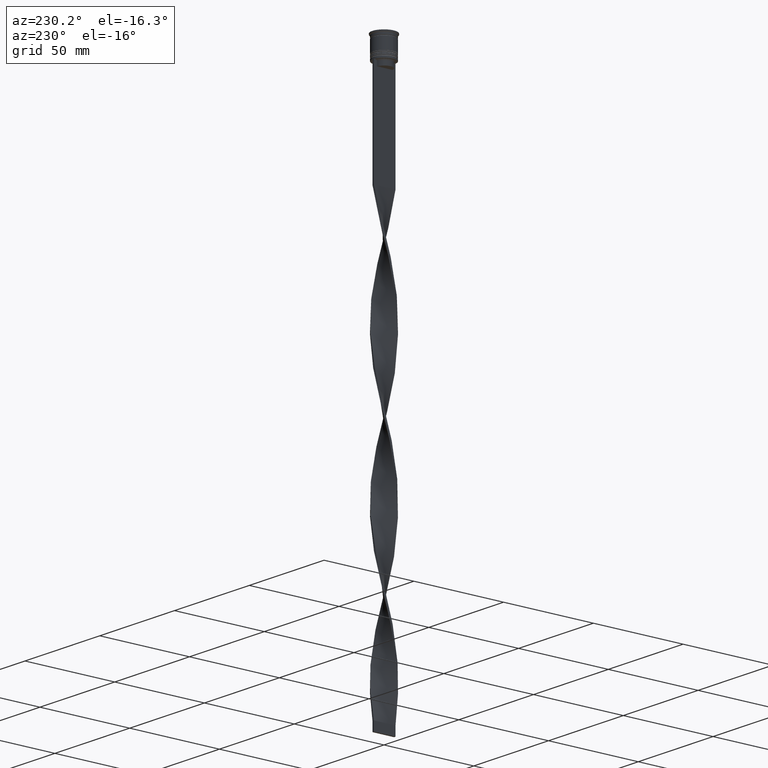
[diagram: clean part render]
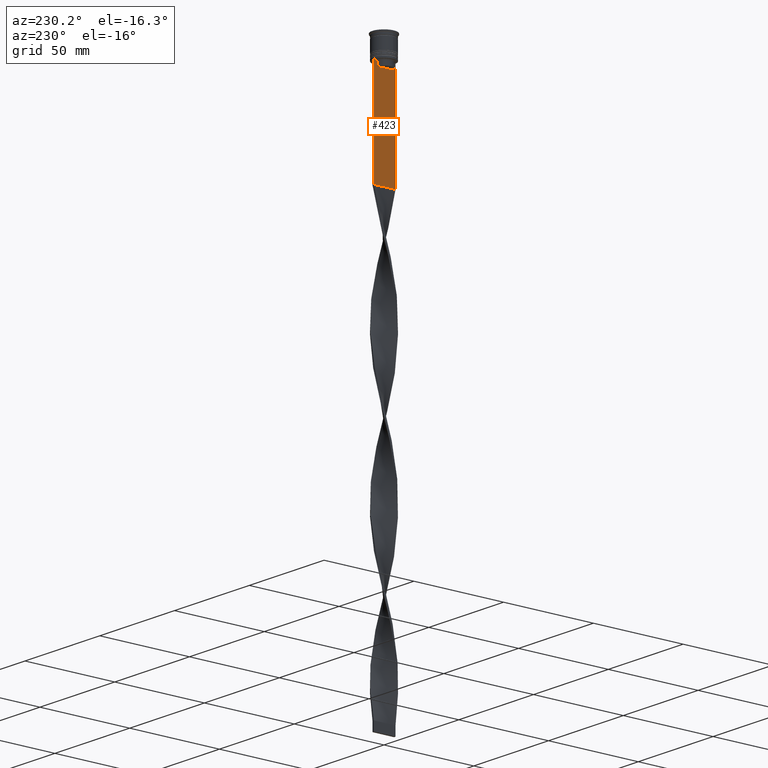
[diagram: same view with one face highlighted and labeled with its STEP entity id]
A machine part, auxiliary view. The second image highlights one B-rep face of the part: STEP entity #423.
In plain terms, the highlighted planar face has unit normal (-1, 0, 0).
Its self-contained STEP definition (entity closure, byte-faithful):
#38 = DIRECTION ( 'NONE',  ( 0.000000000000000000, -1.000000000000000000, 0.000000000000000000 ) ) ;
#66 = EDGE_CURVE ( 'NONE', #820, #506, #1969, .T. ) ;
#145 = CARTESIAN_POINT ( 'NONE',  ( -0.4999999999999997780, -4.874423042781576676, -12.50000000000000000 ) ) ;
#148 = ORIENTED_EDGE ( 'NONE', *, *, #3142, .F. ) ;
#160 = CARTESIAN_POINT ( 'NONE',  ( -0.4999999999999997780, 4.371498598878878816, -13.00000000000000178 ) ) ;
#176 = CARTESIAN_POINT ( 'NONE',  ( -0.4999999999999997780, 4.874423042781576676, -12.50000000000000000 ) ) ;
#205 = LINE ( 'NONE', #3421, #2182 ) ;
#251 = PLANE ( 'NONE',  #2102 ) ;
#280 = CARTESIAN_POINT ( 'NONE',  ( -0.4999999999999997780, 4.874423042781576676, -12.50000000000000000 ) ) ;
#306 = ORIENTED_EDGE ( 'NONE', *, *, #600, .F. ) ;
#339 = EDGE_CURVE ( 'NONE', #1458, #2911, #1206, .T. ) ;
#423 = ADVANCED_FACE ( 'NONE', ( #496 ), #251, .T. ) ;
#489 = DIRECTION ( 'NONE',  ( 0.000000000000000000, -1.000000000000000000, 0.000000000000000000 ) ) ;
#496 = FACE_OUTER_BOUND ( 'NONE', #3674, .T. ) ;
#506 = VERTEX_POINT ( 'NONE', #3381 ) ;
#549 = CARTESIAN_POINT ( 'NONE',  ( -0.4999999999999997780, 5.878775382679627626, -12.50000000000000000 ) ) ;
#556 = DIRECTION ( 'NONE',  ( 0.000000000000000000, 0.000000000000000000, -1.000000000000000000 ) ) ;
#574 = DIRECTION ( 'NONE',  ( 0.000000000000000000, 0.000000000000000000, -1.000000000000000000 ) ) ;
#600 = EDGE_CURVE ( 'NONE', #2527, #506, #2360, .T. ) ;
#603 = LINE ( 'NONE', #2752, #3300 ) ;
#646 = DIRECTION ( 'NONE',  ( 0.000000000000000000, 0.000000000000000000, -1.000000000000000000 ) ) ;
#652 = VERTEX_POINT ( 'NONE', #2976 ) ;
#656 = ORIENTED_EDGE ( 'NONE', *, *, #4055, .F. ) ;
#699 = VECTOR ( 'NONE', #3016, 1000.000000000000000 ) ;
#736 = CARTESIAN_POINT ( 'NONE',  ( -0.4999999999999997780, -4.371498598878878816, -13.00000000000000178 ) ) ;
#756 = DIRECTION ( 'NONE',  ( 0.000000000000000000, 1.000000000000000000, 0.000000000000000000 ) ) ;
#817 = CARTESIAN_POINT ( 'NONE',  ( -0.4999999999999997780, -4.539195586926424220, -12.83338928448044136 ) ) ;
#820 = VERTEX_POINT ( 'NONE', #1014 ) ;
#867 = VERTEX_POINT ( 'NONE', #3537 ) ;
#882 = CARTESIAN_POINT ( 'NONE',  ( -0.4999999999999997780, -6.000000000000000000, -12.50000000000000000 ) ) ;
#906 = ORIENTED_EDGE ( 'NONE', *, *, #917, .F. ) ;
#917 = EDGE_CURVE ( 'NONE', #2240, #652, #1123, .T. ) ;
#1014 = CARTESIAN_POINT ( 'NONE',  ( -0.4999999999999997780, 6.000000000000001776, -12.50000000000000000 ) ) ;
#1021 = CARTESIAN_POINT ( 'NONE',  ( -0.4999999999999997780, -4.874423042781576676, -12.50000000000000000 ) ) ;
#1115 = EDGE_CURVE ( 'NONE', #867, #2277, #3442, .T. ) ;
#1123 = LINE ( 'NONE', #2620, #3887 ) ;
#1126 = CARTESIAN_POINT ( 'NONE',  ( -0.4999999999999997780, -6.000000000000000000, -12.50000000000000000 ) ) ;
#1159 = VERTEX_POINT ( 'NONE', #549 ) ;
#1206 = B_SPLINE_CURVE_WITH_KNOTS ( 'NONE', 3,
 ( #736, #817, #3600, #145 ),
 .UNSPECIFIED., .F., .F.,
 ( 4, 4 ),
 ( 0.02089901220910806920, 0.02161421017310284978 ),
 .UNSPECIFIED. ) ;
#1429 = VECTOR ( 'NONE', #646, 1000.000000000000000 ) ;
#1446 = CARTESIAN_POINT ( 'NONE',  ( -0.4999999999999997780, 4.371498598878878816, -15.50000000000000000 ) ) ;
#1454 = CARTESIAN_POINT ( 'NONE',  ( -0.4999999999999997780, 4.706831415367290106, -12.66671683478478982 ) ) ;
#1458 = VERTEX_POINT ( 'NONE', #1612 ) ;
#1493 = CARTESIAN_POINT ( 'NONE',  ( -0.4999999999999997780, -6.000000000000000000, -12.50000000000000000 ) ) ;
#1519 = LINE ( 'NONE', #3671, #1783 ) ;
#1522 = ORIENTED_EDGE ( 'NONE', *, *, #2310, .F. ) ;
#1524 = CARTESIAN_POINT ( 'NONE',  ( -0.4999999999999997780, -6.000000000000000000, -0.4584054212077061097 ) ) ;
#1612 = CARTESIAN_POINT ( 'NONE',  ( -0.4999999999999997780, -4.371498598878878816, -13.00000000000000178 ) ) ;
#1620 = CARTESIAN_POINT ( 'NONE',  ( -0.4999999999999997780, -6.000000000000000000, -12.50000000000000000 ) ) ;
#1629 = VECTOR ( 'NONE', #756, 1000.000000000000000 ) ;
#1783 = VECTOR ( 'NONE', #574, 1000.000000000000000 ) ;
#1922 = ORIENTED_EDGE ( 'NONE', *, *, #339, .F. ) ;
#1925 = CARTESIAN_POINT ( 'NONE',  ( -0.4999999999999997780, 6.000000000000000888, -0.4584054212077061097 ) ) ;
#1928 = EDGE_CURVE ( 'NONE', #820, #1159, #2790, .T. ) ;
#1937 = CARTESIAN_POINT ( 'NONE',  ( -0.4999999999999997780, -6.000000000000000000, -68.50000000000000000 ) ) ;
#1952 = DIRECTION ( 'NONE',  ( 0.000000000000000000, 0.000000000000000000, 1.000000000000000000 ) ) ;
#1969 = LINE ( 'NONE', #1925, #1429 ) ;
#2008 = ORIENTED_EDGE ( 'NONE', *, *, #3249, .F. ) ;
#2102 = AXIS2_PLACEMENT_3D ( 'NONE', #1524, #2410, #1952 ) ;
#2111 = ORIENTED_EDGE ( 'NONE', *, *, #2580, .F. ) ;
#2182 = VECTOR ( 'NONE', #2388, 1000.000000000000000 ) ;
#2240 = VERTEX_POINT ( 'NONE', #1446 ) ;
#2266 = LINE ( 'NONE', #1620, #3430 ) ;
#2277 = VERTEX_POINT ( 'NONE', #882 ) ;
#2310 = EDGE_CURVE ( 'NONE', #1159, #3776, #603, .T. ) ;
#2360 = LINE ( 'NONE', #2722, #1629 ) ;
#2388 = DIRECTION ( 'NONE',  ( -0.000000000000000000, -0.000000000000000000, 1.000000000000000000 ) ) ;
#2410 = DIRECTION ( 'NONE',  ( -1.000000000000000000, 0.000000000000000000, 0.000000000000000000 ) ) ;
#2495 = DIRECTION ( 'NONE',  ( 0.000000000000000000, -1.000000000000000000, 0.000000000000000000 ) ) ;
#2527 = VERTEX_POINT ( 'NONE', #1937 ) ;
#2580 = EDGE_CURVE ( 'NONE', #2911, #867, #2266, .T. ) ;
#2620 = CARTESIAN_POINT ( 'NONE',  ( -0.4999999999999997780, 4.399999999999999467, -15.50000000000000000 ) ) ;
#2722 = CARTESIAN_POINT ( 'NONE',  ( -0.4999999999999997780, -6.000000000000000000, -68.50000000000000000 ) ) ;
#2752 = CARTESIAN_POINT ( 'NONE',  ( -0.4999999999999997780, -6.000000000000000000, -12.50000000000000000 ) ) ;
#2790 = LINE ( 'NONE', #1126, #699 ) ;
#2830 = VERTEX_POINT ( 'NONE', #160 ) ;
#2911 = VERTEX_POINT ( 'NONE', #1021 ) ;
#2976 = CARTESIAN_POINT ( 'NONE',  ( -0.4999999999999997780, -4.371498598878878816, -15.50000000000000000 ) ) ;
#2996 = ORIENTED_EDGE ( 'NONE', *, *, #1928, .F. ) ;
#3016 = DIRECTION ( 'NONE',  ( 0.000000000000000000, -1.000000000000000000, 0.000000000000000000 ) ) ;
#3053 = CARTESIAN_POINT ( 'NONE',  ( -0.4999999999999997780, 4.539195634199897356, -12.83338923751318816 ) ) ;
#3095 = DIRECTION ( 'NONE',  ( 0.000000000000000000, -1.000000000000000000, 0.000000000000000000 ) ) ;
#3142 = EDGE_CURVE ( 'NONE', #652, #1458, #205, .T. ) ;
#3249 = EDGE_CURVE ( 'NONE', #2830, #2240, #1519, .T. ) ;
#3276 = ORIENTED_EDGE ( 'NONE', *, *, #66, .T. ) ;
#3300 = VECTOR ( 'NONE', #2495, 1000.000000000000000 ) ;
#3362 = VECTOR ( 'NONE', #556, 1000.000000000000000 ) ;
#3381 = CARTESIAN_POINT ( 'NONE',  ( -0.4999999999999997780, 6.000000000000000888, -68.50000000000000000 ) ) ;
#3406 = LINE ( 'NONE', #3724, #3362 ) ;
#3421 = CARTESIAN_POINT ( 'NONE',  ( -0.4999999999999997780, -4.371498598878878816, 0.000000000000000000 ) ) ;
#3430 = VECTOR ( 'NONE', #38, 1000.000000000000000 ) ;
#3442 = LINE ( 'NONE', #1493, #3549 ) ;
#3453 = ORIENTED_EDGE ( 'NONE', *, *, #1115, .F. ) ;
#3537 = CARTESIAN_POINT ( 'NONE',  ( -0.4999999999999997780, -5.878775382679627626, -12.50000000000000000 ) ) ;
#3549 = VECTOR ( 'NONE', #3095, 1000.000000000000000 ) ;
#3600 = CARTESIAN_POINT ( 'NONE',  ( -0.4999999999999997780, -4.706831372970964544, -12.66671687695981596 ) ) ;
#3626 = EDGE_CURVE ( 'NONE', #3776, #2830, #4051, .T. ) ;
#3671 = CARTESIAN_POINT ( 'NONE',  ( -0.4999999999999997780, 4.371498598878878816, 0.000000000000000000 ) ) ;
#3674 = EDGE_LOOP ( 'NONE', ( #3867, #1522, #2996, #3276, #306, #656, #3453, #2111, #1922, #148, #906, #2008 ) ) ;
#3724 = CARTESIAN_POINT ( 'NONE',  ( -0.4999999999999997780, -6.000000000000000000, -0.4584054212077061097 ) ) ;
#3776 = VERTEX_POINT ( 'NONE', #280 ) ;
#3867 = ORIENTED_EDGE ( 'NONE', *, *, #3626, .F. ) ;
#3887 = VECTOR ( 'NONE', #489, 1000.000000000000000 ) ;
#3998 = CARTESIAN_POINT ( 'NONE',  ( -0.4999999999999997780, 4.371498598878878816, -13.00000000000000178 ) ) ;
#4051 = B_SPLINE_CURVE_WITH_KNOTS ( 'NONE', 3,
 ( #176, #1454, #3053, #3998 ),
 .UNSPECIFIED., .F., .F.,
 ( 4, 4 ),
 ( 0.008336552452178418518, 0.009045730124312837891 ),
 .UNSPECIFIED. ) ;
#4055 = EDGE_CURVE ( 'NONE', #2277, #2527, #3406, .T. ) ;